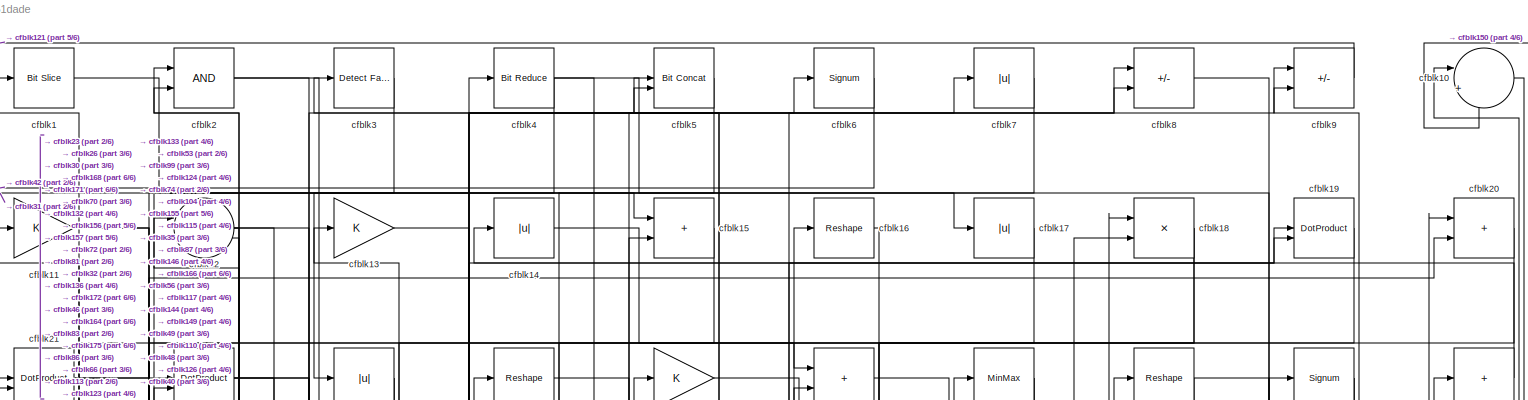
[diagram: root canvas - part 1/6, full width, top band]
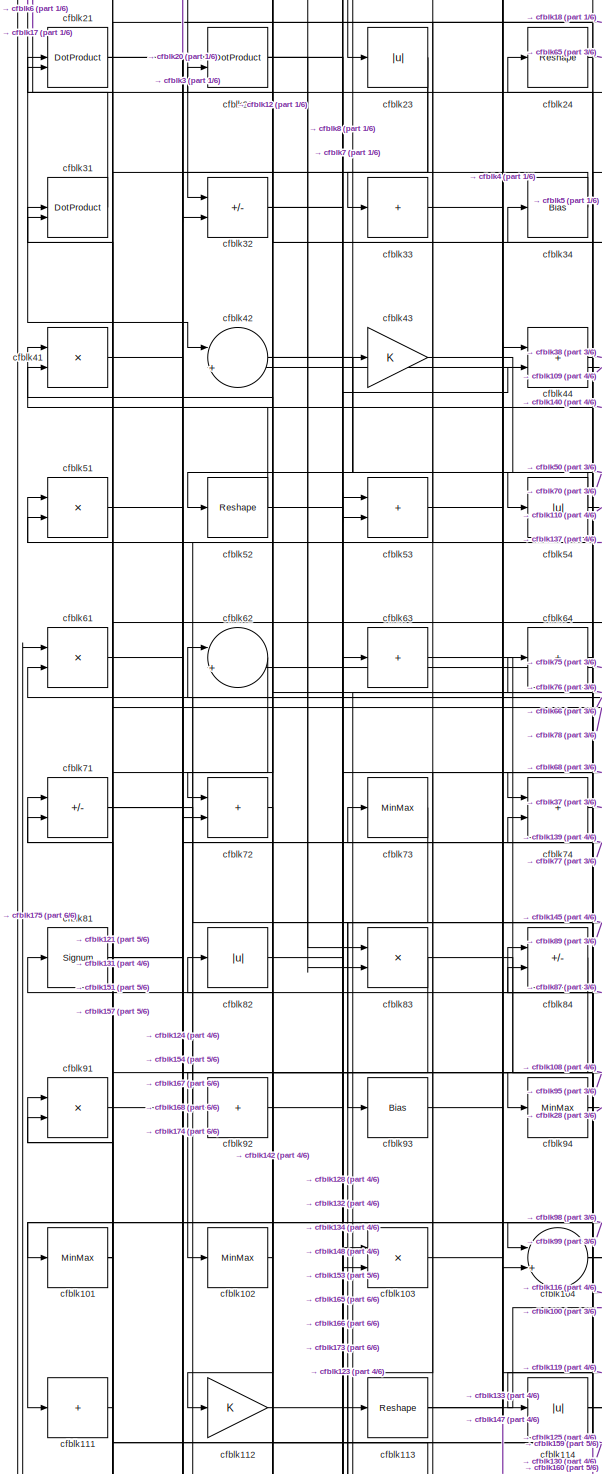
[diagram: root canvas - part 2/6, middle left region]
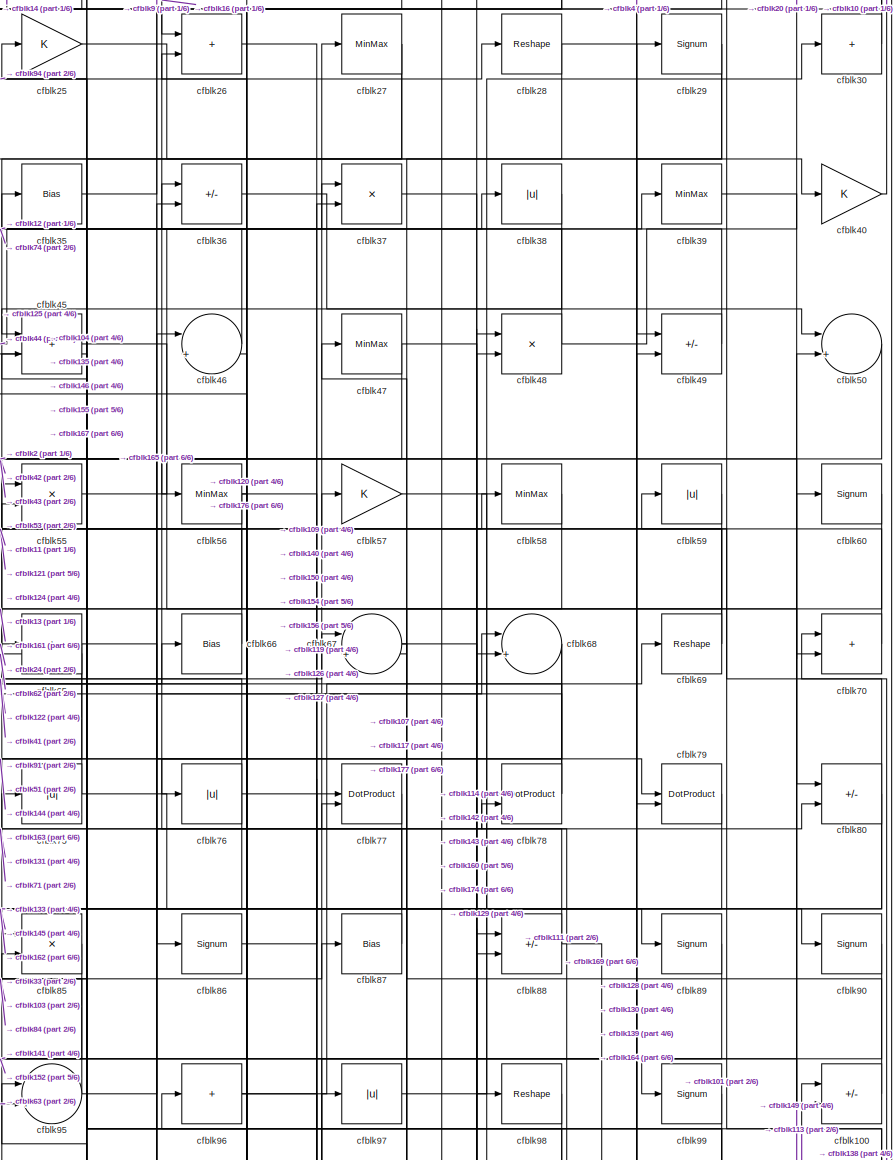
[diagram: root canvas - part 3/6, middle right region]
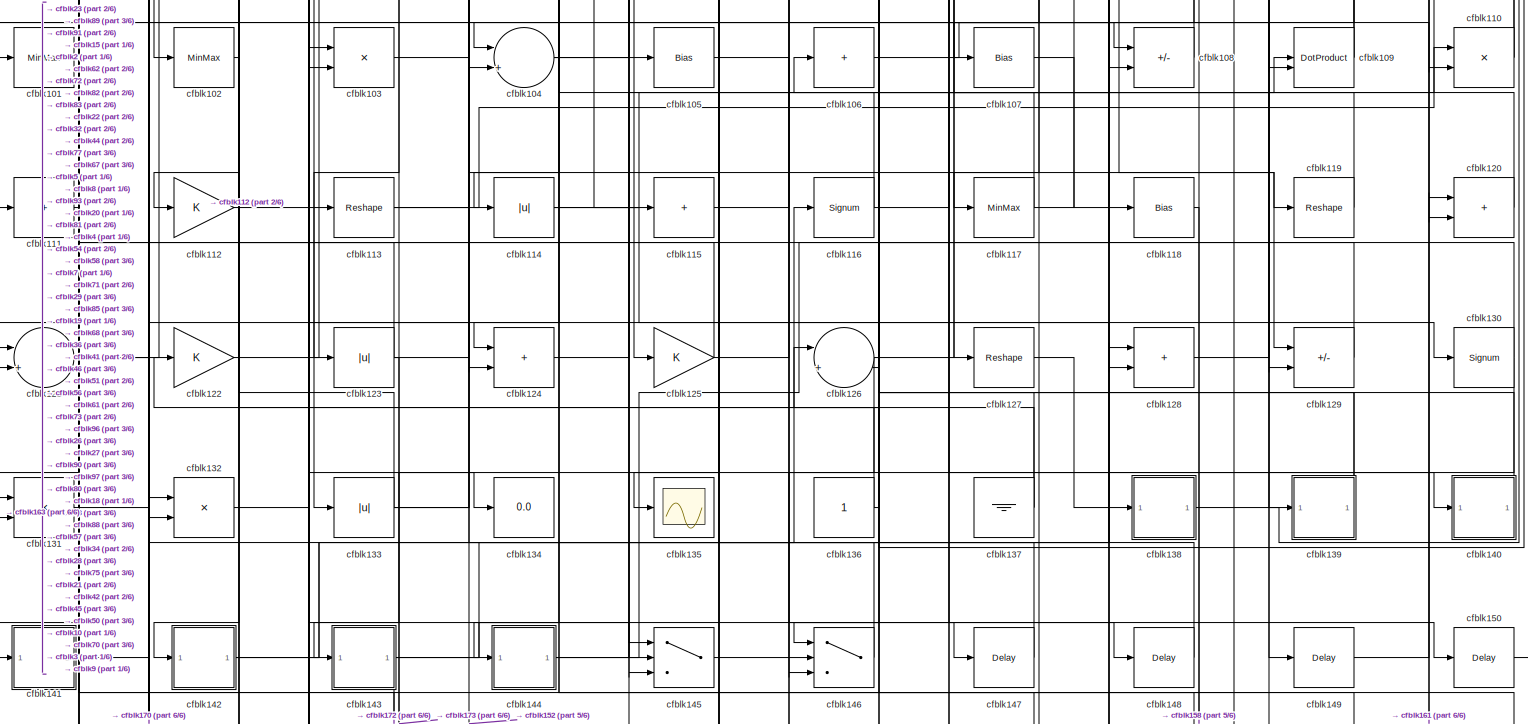
[diagram: root canvas - part 4/6, full width, bottom band]
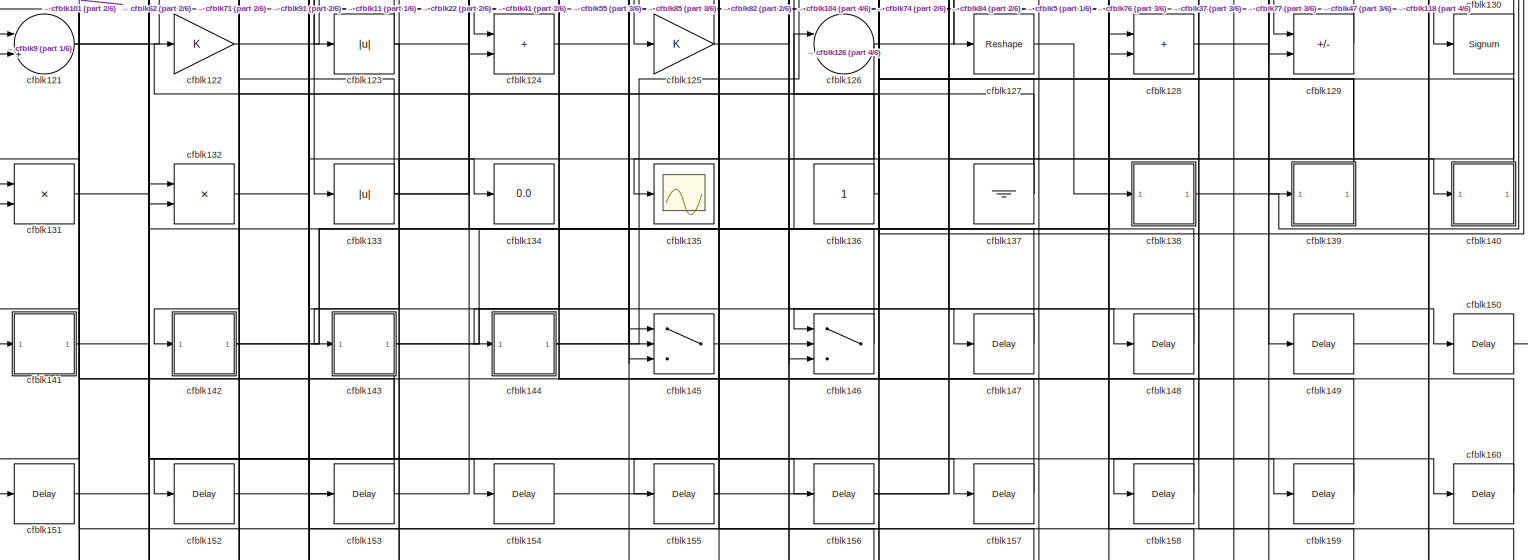
[diagram: root canvas - part 5/6, full width, bottom band]
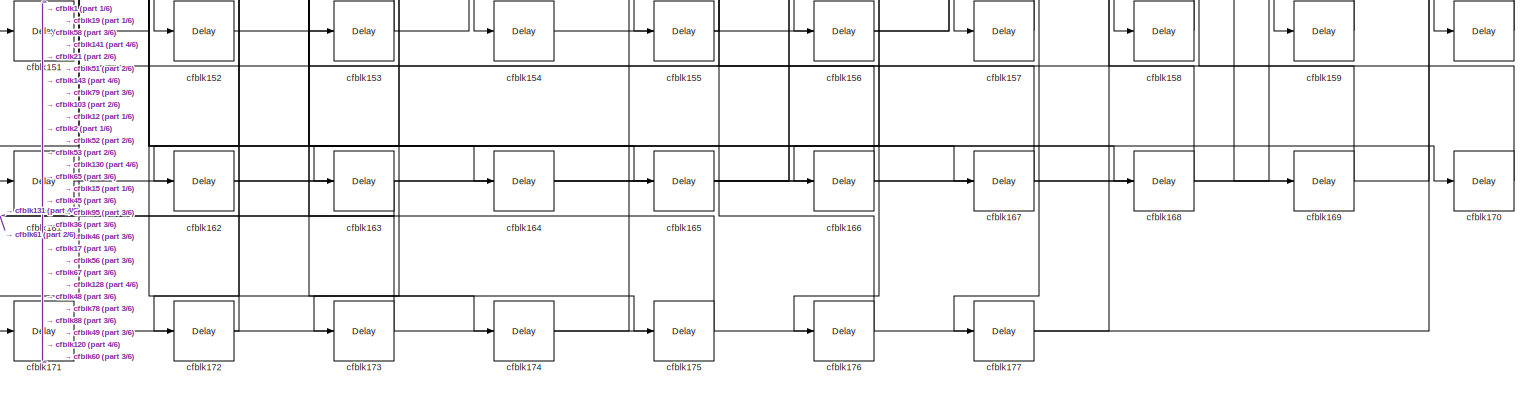
[diagram: root canvas - part 6/6, full width, bottom band]
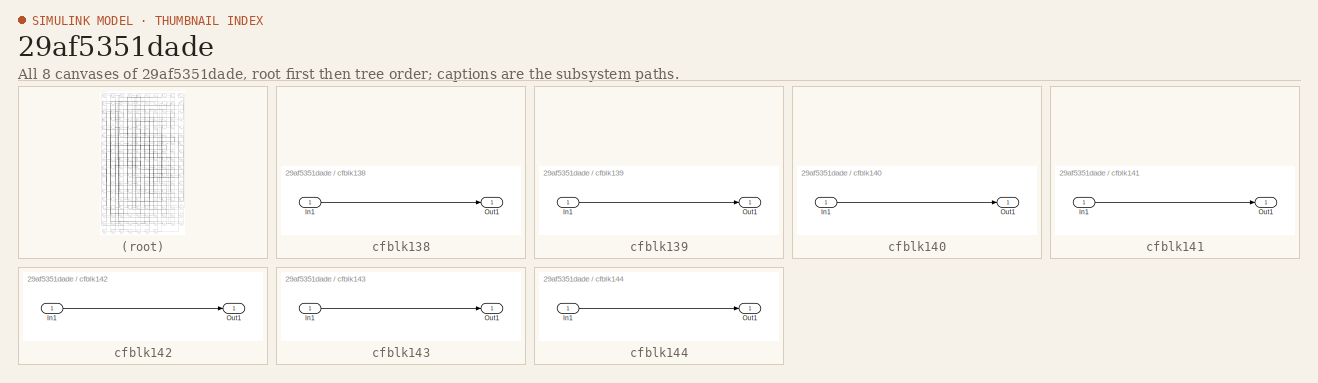
[diagram: thumbnail index - all 8 canvases of the model, root first then tree order]
MODEL slx_29af5351dade
KIND model
CONFIG AbsTol = auto
CONFIG EnableMultiTasking = off
CONFIG FixedStep = auto
CONFIG MaxStep = auto
CONFIG MinStep = auto
CONFIG RelTol = 1e-3
CONFIG SampleTimeConstraint = Unconstrained
CONFIG SolverName = VariableStepAuto
CONFIG StartTime = 0.0
CONFIG StopTime = 10.0
BLOCK [Reference] cfblk1  REF=hdlsllib/Logic and Bit
Operations/Bit Slice
  SourceBlock = hdlsllib/Logic and Bit\nOperations/Bit Slice
  SourceType = Bit Slice
BLOCK [Sum] cfblk10
  Inputs = |++
BLOCK [Sum] cfblk100
  IconShape = rectangular
  Inputs = +-
BLOCK [MinMax] cfblk101
BLOCK [MinMax] cfblk102
BLOCK [Product] cfblk103
  Inputs = */
  RndMeth = Zero
  SaturateOnIntegerOverflow = on
BLOCK [Sum] cfblk104
  Inputs = |++
BLOCK [Bias] cfblk105
  Bias = 0.0
  SaturateOnIntegerOverflow = off
BLOCK [Sum] cfblk106
  IconShape = rectangular
  Inputs = +
BLOCK [Bias] cfblk107
  Bias = 0.0
  SaturateOnIntegerOverflow = off
BLOCK [Sum] cfblk108
  IconShape = rectangular
  Inputs = +-
BLOCK [DotProduct] cfblk109
  OutDataTypeStr = Inherit: Inherit via internal rule
BLOCK [Gain] cfblk11
BLOCK [Product] cfblk110
  Inputs = */
  RndMeth = Zero
  SaturateOnIntegerOverflow = on
BLOCK [Sum] cfblk111
  IconShape = rectangular
  Inputs = +
BLOCK [Gain] cfblk112
BLOCK [Reshape] cfblk113
BLOCK [Abs] cfblk114
  SaturateOnIntegerOverflow = off
BLOCK [Sum] cfblk115
  IconShape = rectangular
  Inputs = +
BLOCK [Signum] cfblk116
BLOCK [MinMax] cfblk117
BLOCK [Bias] cfblk118
  Bias = 0.0
  SaturateOnIntegerOverflow = off
BLOCK [Reshape] cfblk119
BLOCK [Sum] cfblk12
  Inputs = |++
BLOCK [Sum] cfblk120
  IconShape = rectangular
BLOCK [Sum] cfblk121
  Inputs = |++
BLOCK [Gain] cfblk122
BLOCK [Abs] cfblk123
  SaturateOnIntegerOverflow = off
BLOCK [Sum] cfblk124
  IconShape = rectangular
BLOCK [Gain] cfblk125
BLOCK [Sum] cfblk126
  Inputs = |++
BLOCK [Reshape] cfblk127
BLOCK [Sum] cfblk128
  IconShape = rectangular
BLOCK [Sum] cfblk129
  IconShape = rectangular
  Inputs = +-
BLOCK [Gain] cfblk13
BLOCK [Signum] cfblk130
BLOCK [Product] cfblk131
  Inputs = */
  RndMeth = Zero
  SaturateOnIntegerOverflow = on
BLOCK [Product] cfblk132
  Inputs = */
  RndMeth = Zero
  SaturateOnIntegerOverflow = on
BLOCK [Abs] cfblk133
  SaturateOnIntegerOverflow = off
BLOCK [Display] cfblk134
  Decimation = 1
BLOCK [Scope] cfblk135
  Floating = off
  NumInputPorts = 1
  ScopeSpecificationString = Simulink.scopes.TimeScopeBlockCfg('CurrentConfiguration', extmgr.ConfigurationSet(extmgr.Configuration('Core','General UI',true),extmgr.Configuration('Core','Source UI',true),extmgr.Configuration('Sources','WiredSimulink',true,'DataLoggingVariableName','ScopeData2','DataLoggingSaveFormat','Array','DataLoggingLimitDataPoints',true,'DataLoggingDecimation','1'),extmgr.Configuration('Visuals','Time Do...<+868ch>
BLOCK [Constant] cfblk136
  SampleTime = -1
BLOCK [Ground] cfblk137
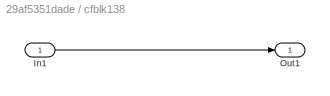
BLOCK [SubSystem] cfblk138
  LibrarySourceBlock = hdlsllib/Ports &\nSubsystems/Subsystem
BLOCK [Inport] cfblk138/In1
BLOCK [Outport] cfblk138/Out1
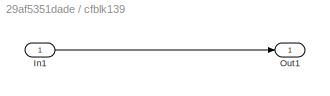
BLOCK [SubSystem] cfblk139
  LibrarySourceBlock = hdlsllib/Ports &\nSubsystems/Subsystem
BLOCK [Inport] cfblk139/In1
BLOCK [Outport] cfblk139/Out1
BLOCK [Abs] cfblk14
  SaturateOnIntegerOverflow = off
BLOCK [SubSystem] cfblk140
  LibrarySourceBlock = hdlsllib/Ports &\nSubsystems/Subsystem
BLOCK [Inport] cfblk140/In1
BLOCK [Outport] cfblk140/Out1
BLOCK [SubSystem] cfblk141
  LibrarySourceBlock = hdlsllib/Ports &\nSubsystems/Subsystem
BLOCK [Inport] cfblk141/In1
BLOCK [Outport] cfblk141/Out1
BLOCK [SubSystem] cfblk142
  LibrarySourceBlock = hdlsllib/Ports &\nSubsystems/Subsystem
BLOCK [Inport] cfblk142/In1
BLOCK [Outport] cfblk142/Out1
BLOCK [SubSystem] cfblk143
  LibrarySourceBlock = hdlsllib/Ports &\nSubsystems/Subsystem
BLOCK [Inport] cfblk143/In1
BLOCK [Outport] cfblk143/Out1
BLOCK [SubSystem] cfblk144
  LibrarySourceBlock = hdlsllib/Ports &\nSubsystems/Subsystem
BLOCK [Inport] cfblk144/In1
BLOCK [Outport] cfblk144/Out1
BLOCK [Switch] cfblk145
  InputSameDT = off
  SaturateOnIntegerOverflow = off
BLOCK [Switch] cfblk146
  InputSameDT = off
  SaturateOnIntegerOverflow = off
BLOCK [Delay] cfblk147
  InputPortMap = u0
  SampleTime = 1
BLOCK [Delay] cfblk148
  InputPortMap = u0
  SampleTime = 1
BLOCK [Delay] cfblk149
  InputPortMap = u0
  SampleTime = 1
BLOCK [Sum] cfblk15
  IconShape = rectangular
BLOCK [Delay] cfblk150
  InputPortMap = u0
  SampleTime = 1
BLOCK [Delay] cfblk151
  InputPortMap = u0
  SampleTime = 1
BLOCK [Delay] cfblk152
  InputPortMap = u0
  SampleTime = 1
BLOCK [Delay] cfblk153
  InputPortMap = u0
  SampleTime = 1
BLOCK [Delay] cfblk154
  InputPortMap = u0
  SampleTime = 1
BLOCK [Delay] cfblk155
  InputPortMap = u0
  SampleTime = 1
BLOCK [Delay] cfblk156
  InputPortMap = u0
  SampleTime = 1
BLOCK [Delay] cfblk157
  InputPortMap = u0
  SampleTime = 1
BLOCK [Delay] cfblk158
  InputPortMap = u0
  SampleTime = 1
BLOCK [Delay] cfblk159
  InputPortMap = u0
  SampleTime = 1
BLOCK [Reshape] cfblk16
BLOCK [Delay] cfblk160
  InputPortMap = u0
  SampleTime = 1
BLOCK [Delay] cfblk161
  InputPortMap = u0
  SampleTime = 1
BLOCK [Delay] cfblk162
  InputPortMap = u0
  SampleTime = 1
BLOCK [Delay] cfblk163
  InputPortMap = u0
  SampleTime = 1
BLOCK [Delay] cfblk164
  InputPortMap = u0
  SampleTime = 1
BLOCK [Delay] cfblk165
  InputPortMap = u0
  SampleTime = 1
BLOCK [Delay] cfblk166
  InputPortMap = u0
  SampleTime = 1
BLOCK [Delay] cfblk167
  InputPortMap = u0
  SampleTime = 1
BLOCK [Delay] cfblk168
  InputPortMap = u0
  SampleTime = 1
BLOCK [Delay] cfblk169
  InputPortMap = u0
  SampleTime = 1
BLOCK [Abs] cfblk17
  SaturateOnIntegerOverflow = off
BLOCK [Delay] cfblk170
  InputPortMap = u0
  SampleTime = 1
BLOCK [Delay] cfblk171
  InputPortMap = u0
  SampleTime = 1
BLOCK [Delay] cfblk172
  InputPortMap = u0
  SampleTime = 1
BLOCK [Delay] cfblk173
  InputPortMap = u0
  SampleTime = 1
BLOCK [Delay] cfblk174
  InputPortMap = u0
  SampleTime = 1
BLOCK [Delay] cfblk175
  InputPortMap = u0
  SampleTime = 1
BLOCK [Delay] cfblk176
  InputPortMap = u0
  SampleTime = 1
BLOCK [Delay] cfblk177
  InputPortMap = u0
  SampleTime = 1
BLOCK [Product] cfblk18
  Inputs = */
  RndMeth = Zero
  SaturateOnIntegerOverflow = on
BLOCK [DotProduct] cfblk19
  OutDataTypeStr = Inherit: Inherit via internal rule
BLOCK [Logic] cfblk2
  AllPortsSameDT = off
  OutDataTypeStr = boolean
BLOCK [Sum] cfblk20
  IconShape = rectangular
BLOCK [DotProduct] cfblk21
  OutDataTypeStr = Inherit: Inherit via internal rule
BLOCK [DotProduct] cfblk22
  OutDataTypeStr = Inherit: Inherit via internal rule
BLOCK [Abs] cfblk23
  SaturateOnIntegerOverflow = off
BLOCK [Reshape] cfblk24
BLOCK [Gain] cfblk25
BLOCK [Sum] cfblk26
  IconShape = rectangular
BLOCK [MinMax] cfblk27
BLOCK [Reshape] cfblk28
BLOCK [Signum] cfblk29
BLOCK [Reference] cfblk3  REF=hdlsllib/Logic and Bit
Operations/Detect Fall
Nonpositive
  SourceBlock = hdlsllib/Logic and Bit\nOperations/Detect Fall\nNonpositive
  SourceType = Detect Fall Nonpositive
BLOCK [Sum] cfblk30
  IconShape = rectangular
  Inputs = +
BLOCK [DotProduct] cfblk31
  OutDataTypeStr = Inherit: Inherit via internal rule
BLOCK [Sum] cfblk32
  IconShape = rectangular
  Inputs = +-
BLOCK [Sum] cfblk33
  IconShape = rectangular
  Inputs = +
BLOCK [Bias] cfblk34
  Bias = 0.0
  SaturateOnIntegerOverflow = off
BLOCK [Bias] cfblk35
  Bias = 0.0
  SaturateOnIntegerOverflow = off
BLOCK [Sum] cfblk36
  IconShape = rectangular
  Inputs = +-
BLOCK [Product] cfblk37
  Inputs = */
  RndMeth = Zero
  SaturateOnIntegerOverflow = on
BLOCK [Abs] cfblk38
  SaturateOnIntegerOverflow = off
BLOCK [MinMax] cfblk39
BLOCK [Reference] cfblk4  REF=hdlsllib/Logic and Bit
Operations/Bit Reduce
  SourceBlock = hdlsllib/Logic and Bit\nOperations/Bit Reduce
  SourceType = Bit Reduce
BLOCK [Gain] cfblk40
BLOCK [Product] cfblk41
  Inputs = */
  RndMeth = Zero
  SaturateOnIntegerOverflow = on
BLOCK [Sum] cfblk42
  Inputs = |++
BLOCK [Gain] cfblk43
BLOCK [Sum] cfblk44
  IconShape = rectangular
BLOCK [Sum] cfblk45
  IconShape = rectangular
BLOCK [Sum] cfblk46
  Inputs = |++
BLOCK [MinMax] cfblk47
BLOCK [Product] cfblk48
  Inputs = */
  RndMeth = Zero
  SaturateOnIntegerOverflow = on
BLOCK [Sum] cfblk49
  IconShape = rectangular
  Inputs = +-
BLOCK [Reference] cfblk5  REF=hdlsllib/Logic and Bit
Operations/Bit Concat
  SourceBlock = hdlsllib/Logic and Bit\nOperations/Bit Concat
  SourceType = Bit Concat
BLOCK [Sum] cfblk50
  Inputs = |++
BLOCK [Product] cfblk51
  Inputs = */
  RndMeth = Zero
  SaturateOnIntegerOverflow = on
BLOCK [Reshape] cfblk52
BLOCK [Sum] cfblk53
  IconShape = rectangular
BLOCK [Abs] cfblk54
  SaturateOnIntegerOverflow = off
BLOCK [Product] cfblk55
  Inputs = */
  RndMeth = Zero
  SaturateOnIntegerOverflow = on
BLOCK [MinMax] cfblk56
BLOCK [Gain] cfblk57
BLOCK [MinMax] cfblk58
BLOCK [Abs] cfblk59
  SaturateOnIntegerOverflow = off
BLOCK [Signum] cfblk6
BLOCK [Signum] cfblk60
BLOCK [Product] cfblk61
  Inputs = */
  RndMeth = Zero
  SaturateOnIntegerOverflow = on
BLOCK [Sum] cfblk62
  Inputs = |++
BLOCK [Sum] cfblk63
  IconShape = rectangular
  Inputs = +
BLOCK [Sum] cfblk64
  IconShape = rectangular
  Inputs = +
BLOCK [Sum] cfblk65
  IconShape = rectangular
  Inputs = +
BLOCK [Bias] cfblk66
  Bias = 0.0
  SaturateOnIntegerOverflow = off
BLOCK [Sum] cfblk67
  Inputs = |++
BLOCK [Sum] cfblk68
  Inputs = |++
BLOCK [Reshape] cfblk69
BLOCK [Abs] cfblk7
  SaturateOnIntegerOverflow = off
BLOCK [Sum] cfblk70
  IconShape = rectangular
BLOCK [Sum] cfblk71
  IconShape = rectangular
  Inputs = +-
BLOCK [Sum] cfblk72
  IconShape = rectangular
BLOCK [MinMax] cfblk73
BLOCK [Sum] cfblk74
  IconShape = rectangular
BLOCK [Abs] cfblk75
  SaturateOnIntegerOverflow = off
BLOCK [Abs] cfblk76
  SaturateOnIntegerOverflow = off
BLOCK [DotProduct] cfblk77
  OutDataTypeStr = Inherit: Inherit via internal rule
BLOCK [DotProduct] cfblk78
  OutDataTypeStr = Inherit: Inherit via internal rule
BLOCK [DotProduct] cfblk79
  OutDataTypeStr = Inherit: Inherit via internal rule
BLOCK [Sum] cfblk8
  IconShape = rectangular
  Inputs = +-
BLOCK [Sum] cfblk80
  IconShape = rectangular
  Inputs = +-
BLOCK [Signum] cfblk81
BLOCK [Abs] cfblk82
  SaturateOnIntegerOverflow = off
BLOCK [Product] cfblk83
  Inputs = */
  RndMeth = Zero
  SaturateOnIntegerOverflow = on
BLOCK [Sum] cfblk84
  IconShape = rectangular
  Inputs = +-
BLOCK [Product] cfblk85
  Inputs = */
  RndMeth = Zero
  SaturateOnIntegerOverflow = on
BLOCK [Signum] cfblk86
BLOCK [Bias] cfblk87
  Bias = 0.0
  SaturateOnIntegerOverflow = off
BLOCK [Sum] cfblk88
  IconShape = rectangular
  Inputs = +-
BLOCK [Signum] cfblk89
BLOCK [Sum] cfblk9
  IconShape = rectangular
  Inputs = +-
BLOCK [Signum] cfblk90
BLOCK [Product] cfblk91
  Inputs = */
  RndMeth = Zero
  SaturateOnIntegerOverflow = on
BLOCK [Sum] cfblk92
  IconShape = rectangular
  Inputs = +
BLOCK [Bias] cfblk93
  Bias = 0.0
  SaturateOnIntegerOverflow = off
BLOCK [MinMax] cfblk94
BLOCK [Sum] cfblk95
  Inputs = |++
BLOCK [Sum] cfblk96
  IconShape = rectangular
  Inputs = +
BLOCK [Abs] cfblk97
  SaturateOnIntegerOverflow = off
BLOCK [Reshape] cfblk98
BLOCK [Signum] cfblk99
LINE cfblk100:1 -> cfblk57:1
NET cfblk101:1 -> cfblk151:1, cfblk71:1
LINE cfblk102:1 -> cfblk22:2
LINE cfblk103:1 -> cfblk87:1
NET cfblk104:1 -> cfblk105:1, cfblk7:1
LINE cfblk105:1 -> cfblk147:1
LINE cfblk106:1 -> cfblk108:1
LINE cfblk107:1 -> cfblk118:1
LINE cfblk108:1 -> cfblk34:1
NET cfblk109:1 -> cfblk21:2, cfblk42:2
LINE cfblk10:1 -> cfblk126:2
NET cfblk110:1 -> cfblk3:1, cfblk9:1
LINE cfblk111:1 -> cfblk31:1
LINE cfblk112:1 -> cfblk123:1
NET cfblk113:1 -> cfblk100:1, cfblk6:1
NET cfblk114:1 -> cfblk129:2, cfblk48:1
LINE cfblk115:1 -> cfblk19:1
NET cfblk116:1 -> cfblk109:1, cfblk81:1
NET cfblk117:1 -> cfblk18:2, cfblk46:2
LINE cfblk118:1 -> cfblk158:1
LINE cfblk119:1 -> cfblk97:1
NET cfblk11:1 -> cfblk156:1, cfblk157:1
LINE cfblk120:1 -> cfblk36:1
NET cfblk121:1 -> cfblk159:1, cfblk55:1
LINE cfblk122:1 -> cfblk67:1
NET cfblk123:1 -> cfblk143:1, cfblk19:2, cfblk21:1
LINE cfblk124:1 -> cfblk58:1
NET cfblk125:1 -> cfblk68:1, cfblk91:1
NET cfblk126:1 -> cfblk146:3, cfblk27:1
LINE cfblk127:1 -> cfblk138:1
LINE cfblk128:1 -> cfblk29:1
LINE cfblk129:1 -> cfblk96:1
NET cfblk12:1 -> cfblk164:1, cfblk72:1, cfblk83:2
NET cfblk130:1 -> cfblk173:1, cfblk62:1
LINE cfblk131:1 -> cfblk75:1
LINE cfblk132:1 -> cfblk44:2
NET cfblk133:1 -> cfblk5:1, cfblk82:1, cfblk8:1
NET cfblk136:1 -> cfblk106:1, cfblk2:1
NET cfblk137:1 -> cfblk122:1, cfblk51:2
LINE cfblk138/In1:1 -> cfblk138/Out1:1
LINE cfblk138:1 -> cfblk70:1
LINE cfblk139/In1:1 -> cfblk139/Out1:1
NET cfblk139:1 -> cfblk61:2, cfblk73:1
LINE cfblk13:1 -> cfblk99:1
LINE cfblk140/In1:1 -> cfblk140/Out1:1
LINE cfblk140:1 -> cfblk41:2
LINE cfblk141/In1:1 -> cfblk141/Out1:1
LINE cfblk141:1 -> cfblk170:1
LINE cfblk142/In1:1 -> cfblk142/Out1:1
NET cfblk142:1 -> cfblk116:1, cfblk88:1
LINE cfblk143/In1:1 -> cfblk143/Out1:1
NET cfblk143:1 -> cfblk145:2, cfblk172:1, cfblk88:2
LINE cfblk144/In1:1 -> cfblk144/Out1:1
NET cfblk144:1 -> cfblk110:1, cfblk18:1
LINE cfblk145:1 -> cfblk146:2
LINE cfblk146:1 -> cfblk85:2
LINE cfblk147:1 -> cfblk44:1
LINE cfblk148:1 -> cfblk132:1
LINE cfblk149:1 -> cfblk50:2
LINE cfblk14:1 -> cfblk26:1
LINE cfblk150:1 -> cfblk10:2
LINE cfblk151:1 -> cfblk22:1
LINE cfblk152:1 -> cfblk104:2
LINE cfblk153:1 -> cfblk91:2
LINE cfblk154:1 -> cfblk37:2
LINE cfblk155:1 -> cfblk5:2
LINE cfblk156:1 -> cfblk77:1
LINE cfblk157:1 -> cfblk71:2
LINE cfblk158:1 -> cfblk126:1
LINE cfblk159:1 -> cfblk84:2
LINE cfblk15:1 -> cfblk132:2
LINE cfblk160:1 -> cfblk74:2
LINE cfblk161:1 -> cfblk120:1
LINE cfblk162:1 -> cfblk36:2
LINE cfblk163:1 -> cfblk131:2
LINE cfblk164:1 -> cfblk49:2
LINE cfblk165:1 -> cfblk46:1
LINE cfblk166:1 -> cfblk103:1
LINE cfblk167:1 -> cfblk95:1
LINE cfblk168:1 -> cfblk1:1
LINE cfblk169:1 -> cfblk78:2
LINE cfblk16:1 -> cfblk56:1
LINE cfblk170:1 -> cfblk128:1
LINE cfblk171:1 -> cfblk15:2
LINE cfblk172:1 -> cfblk12:2
LINE cfblk173:1 -> cfblk53:1
LINE cfblk174:1 -> cfblk48:2
LINE cfblk175:1 -> cfblk61:1
LINE cfblk176:1 -> cfblk45:2
LINE cfblk177:1 -> cfblk60:1
LINE cfblk17:1 -> cfblk166:1
NET cfblk18:1 -> cfblk113:1, cfblk146:1
LINE cfblk19:1 -> cfblk171:1
LINE cfblk1:1 -> cfblk15:1
LINE cfblk20:1 -> cfblk124:1
NET cfblk21:1 -> cfblk167:1, cfblk168:1
NET cfblk22:1 -> cfblk128:2, cfblk134:1, cfblk83:1
NET cfblk23:1 -> cfblk131:1, cfblk32:2
LINE cfblk24:1 -> cfblk65:1
LINE cfblk25:1 -> cfblk40:1
LINE cfblk26:1 -> cfblk150:1
NET cfblk27:1 -> cfblk104:1, cfblk135:1
NET cfblk28:1 -> cfblk117:1, cfblk130:1
NET cfblk29:1 -> cfblk125:1, cfblk79:2
NET cfblk2:1 -> cfblk175:1, cfblk86:1
LINE cfblk30:1 -> cfblk14:1
LINE cfblk31:1 -> cfblk17:1
NET cfblk32:1 -> cfblk148:1, cfblk8:2
LINE cfblk33:1 -> cfblk89:1
LINE cfblk34:1 -> cfblk33:1
LINE cfblk35:1 -> cfblk9:2
LINE cfblk36:1 -> cfblk50:1
LINE cfblk37:1 -> cfblk100:2
LINE cfblk38:1 -> cfblk45:1
LINE cfblk39:1 -> cfblk80:1
LINE cfblk3:1 -> cfblk32:1
LINE cfblk40:1 -> cfblk10:1
LINE cfblk41:1 -> cfblk154:1
NET cfblk42:1 -> cfblk43:1, cfblk54:1, cfblk70:2
LINE cfblk43:1 -> cfblk98:1
LINE cfblk44:1 -> cfblk38:1
LINE cfblk45:1 -> cfblk120:2
LINE cfblk46:1 -> cfblk12:1
NET cfblk47:1 -> cfblk160:1, cfblk85:1
NET cfblk48:1 -> cfblk20:1, cfblk2:2
LINE cfblk49:1 -> cfblk25:1
NET cfblk4:1 -> cfblk115:1, cfblk49:1, cfblk72:2
LINE cfblk50:1 -> cfblk53:2
NET cfblk51:1 -> cfblk174:1, cfblk94:1
NET cfblk52:1 -> cfblk165:1, cfblk31:2
LINE cfblk53:1 -> cfblk4:1
NET cfblk54:1 -> cfblk110:2, cfblk52:1
LINE cfblk55:1 -> cfblk39:1
NET cfblk56:1 -> cfblk109:2, cfblk114:1, cfblk176:1
LINE cfblk57:1 -> cfblk129:1
LINE cfblk58:1 -> cfblk161:1
LINE cfblk59:1 -> cfblk76:1
LINE cfblk5:1 -> cfblk74:1
LINE cfblk60:1 -> cfblk67:2
LINE cfblk61:1 -> cfblk92:1
LINE cfblk62:1 -> cfblk121:1
LINE cfblk63:1 -> cfblk95:2
LINE cfblk64:1 -> cfblk24:1
NET cfblk65:1 -> cfblk163:1, cfblk79:1
LINE cfblk66:1 -> cfblk13:1
NET cfblk67:1 -> cfblk177:1, cfblk68:2
NET cfblk68:1 -> cfblk103:2, cfblk144:1
NET cfblk69:1 -> cfblk35:1, cfblk47:1
LINE cfblk6:1 -> cfblk42:1
LINE cfblk70:1 -> cfblk11:1
NET cfblk71:1 -> cfblk145:1, cfblk77:2
LINE cfblk72:1 -> cfblk142:1
LINE cfblk73:1 -> cfblk93:1
LINE cfblk74:1 -> cfblk37:1
NET cfblk75:1 -> cfblk139:1, cfblk62:2
NET cfblk76:1 -> cfblk155:1, cfblk41:1, cfblk90:1
LINE cfblk77:1 -> cfblk133:1
NET cfblk78:1 -> cfblk51:1, cfblk55:2
LINE cfblk79:1 -> cfblk162:1
LINE cfblk7:1 -> cfblk23:1
NET cfblk80:1 -> cfblk107:1, cfblk145:3, cfblk59:1
NET cfblk81:1 -> cfblk124:2, cfblk20:2
LINE cfblk82:1 -> cfblk153:1
NET cfblk83:1 -> cfblk108:2, cfblk112:1
LINE cfblk84:1 -> cfblk102:1
LINE cfblk85:1 -> cfblk152:1
LINE cfblk86:1 -> cfblk78:1
LINE cfblk87:1 -> cfblk16:1
NET cfblk88:1 -> cfblk169:1, cfblk26:2
LINE cfblk89:1 -> cfblk141:1
LINE cfblk8:1 -> cfblk149:1
LINE cfblk90:1 -> cfblk127:1
LINE cfblk91:1 -> cfblk66:1
LINE cfblk92:1 -> cfblk63:1
LINE cfblk93:1 -> cfblk119:1
NET cfblk94:1 -> cfblk28:1, cfblk64:1
NET cfblk95:1 -> cfblk80:2, cfblk84:1
NET cfblk96:1 -> cfblk140:1, cfblk69:1
LINE cfblk97:1 -> cfblk30:1
LINE cfblk98:1 -> cfblk111:1
LINE cfblk99:1 -> cfblk101:1
LINE cfblk9:1 -> cfblk121:2
note: NET lines group one-source signal fan-out (src -> all destinations, sorted); 1:1 wires keep LINE
